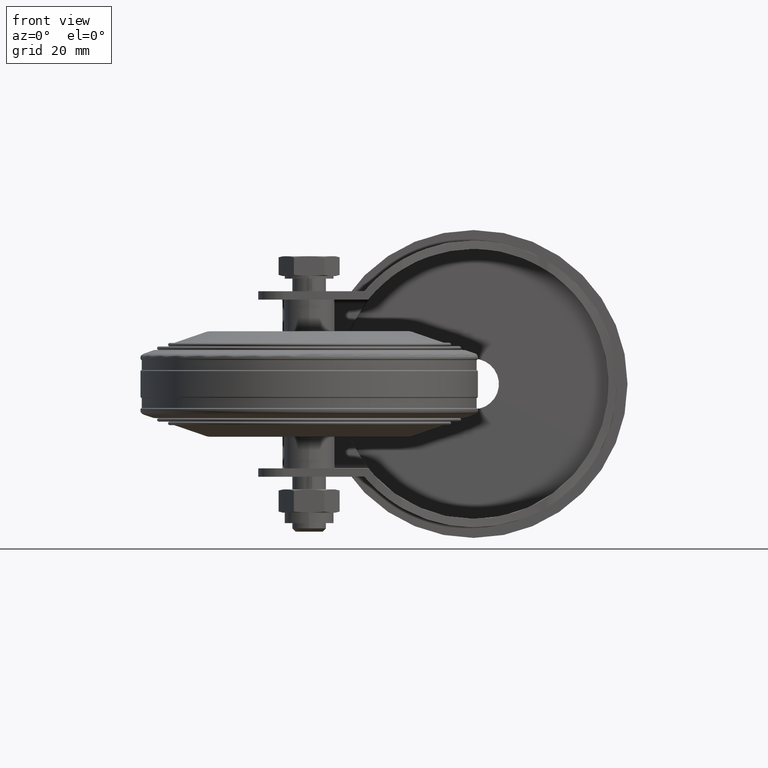
[diagram: clean part render]
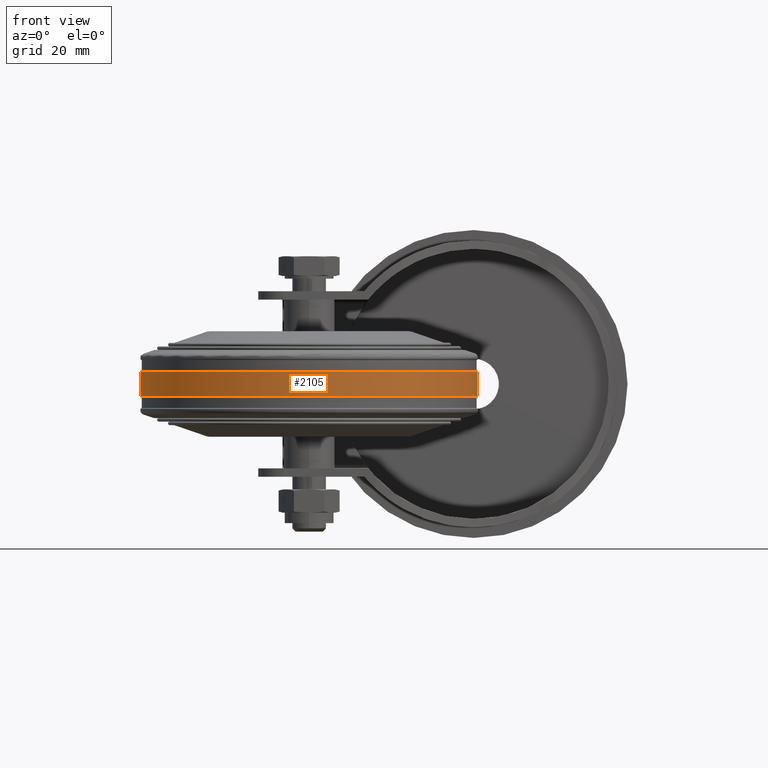
[diagram: same view with one face highlighted and labeled with its STEP entity id]
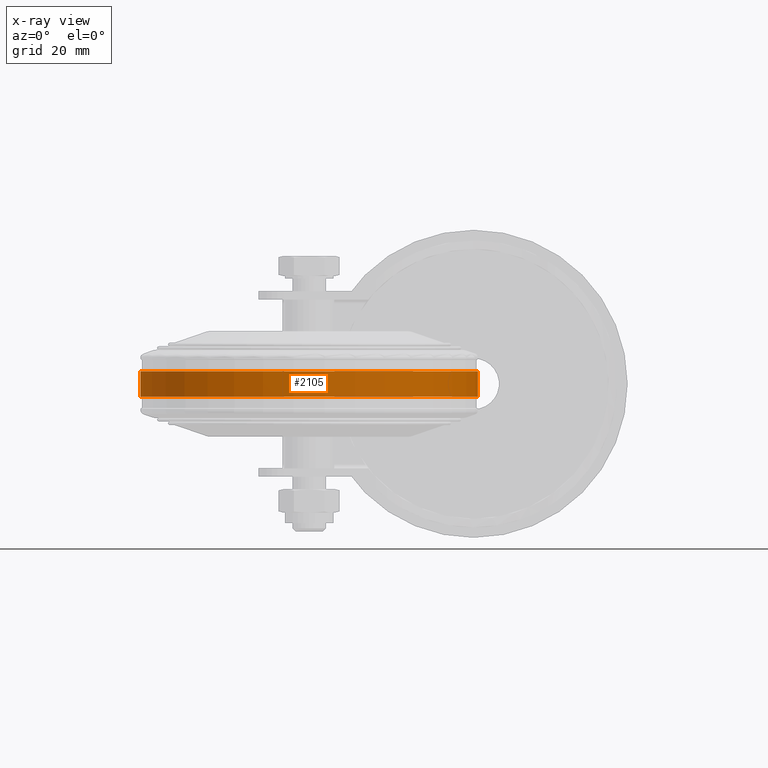
[diagram: x-ray of the same camera — body ghosted, the highlighted face saturated]
A machine part, front view. The second image highlights one B-rep face of the part: STEP entity #2105.
The next image is the same camera in x-ray: the body ghosted, the highlighted face saturated — about 0% of this face is hidden behind the body in this view.
In plain terms, the highlighted cylindrical surface (bore or boss wall) has radius 40 mm, axis along (0, 0, -1).
Its self-contained STEP definition (entity closure, byte-faithful):
#265=CYLINDRICAL_SURFACE('',#2492,40.);
#395=FACE_OUTER_BOUND('',#560,.T.);
#560=EDGE_LOOP('',(#1886,#1887,#1888,#1889));
#700=CIRCLE('',#2491,40.);
#701=CIRCLE('',#2493,40.);
#788=LINE('',#4045,#866);
#866=VECTOR('',#3129,40.);
#1041=VERTEX_POINT('',#4040);
#1042=VERTEX_POINT('',#4044);
#1324=EDGE_CURVE('',#1041,#1041,#700,.T.);
#1325=EDGE_CURVE('',#1041,#1042,#788,.T.);
#1326=EDGE_CURVE('',#1042,#1042,#701,.T.);
#1886=ORIENTED_EDGE('',*,*,#1324,.F.);
#1887=ORIENTED_EDGE('',*,*,#1325,.T.);
#1888=ORIENTED_EDGE('',*,*,#1326,.T.);
#1889=ORIENTED_EDGE('',*,*,#1325,.F.);
#2105=ADVANCED_FACE('',(#395),#265,.T.);
#2491=AXIS2_PLACEMENT_3D('',#4042,#3125,#3126);
#2492=AXIS2_PLACEMENT_3D('',#4043,#3127,#3128);
#2493=AXIS2_PLACEMENT_3D('',#4046,#3130,#3131);
#3125=DIRECTION('center_axis',(6.12323399573677E-17,0.,-1.));
#3126=DIRECTION('ref_axis',(-1.,0.,-6.12323399573677E-17));
#3127=DIRECTION('center_axis',(6.12323399573677E-17,0.,-1.));
#3128=DIRECTION('ref_axis',(-1.,0.,-6.12323399573677E-17));
#3129=DIRECTION('',(-6.12323399573677E-17,0.,1.));
#3130=DIRECTION('center_axis',(6.12323399573677E-17,0.,-1.));
#3131=DIRECTION('ref_axis',(-1.,0.,-6.12323399573677E-17));
#4040=CARTESIAN_POINT('',(40.,-4.89858719658941E-15,-3.));
#4042=CARTESIAN_POINT('Origin',(1.83697019872103E-16,0.,-3.));
#4043=CARTESIAN_POINT('Origin',(7.65404249467096E-16,0.,-12.5));
#4044=CARTESIAN_POINT('',(40.,-4.89858719658941E-15,3.));
#4045=CARTESIAN_POINT('',(40.,-4.89858719658941E-15,-12.5));
#4046=CARTESIAN_POINT('Origin',(-1.83697019872103E-16,0.,3.));